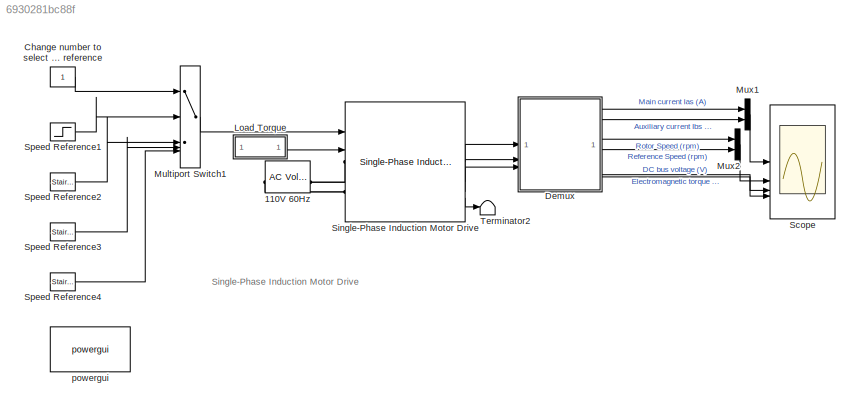
MODEL slx_6930281bc88f
KIND model
CONFIG AbsTol = auto
CONFIG EnableMultiTasking = on
CONFIG FixedStep = auto
CONFIG MaxStep = auto
CONFIG MinStep = auto
CONFIG PreLoadFcn = Ts=2e-6;
CONFIG RelTol = 1e-3
CONFIG SampleTimeConstraint = Unconstrained
CONFIG SolverName = FixedStepDiscrete
CONFIG StartTime = 0.0
CONFIG StopTime = 3
BLOCK [Reference] 110V 60Hz  REF=spsACVoltageSourceLib/AC Voltage Source
  LibrarySourceBlock = sps_lib/Sources/AC Voltage Source
  SourceBlock = spsACVoltageSourceLib/AC Voltage Source
  SourceType = AC Voltage Source
BLOCK [Constant] Change number to select Speed reference
  NameLocation = top
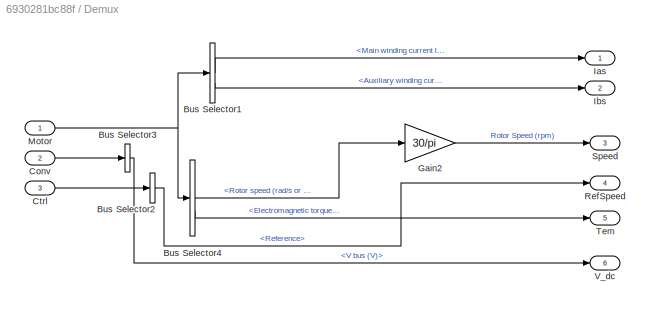
BLOCK [SubSystem] Demux
BLOCK [BusSelector] Demux/Bus Selector1
  OutputSignals = Stator measurements.Main winding current Ia (A or pu),Stator measurements.Auxiliary  winding current Ib (A or pu)
BLOCK [BusSelector] Demux/Bus Selector2
  OutputSignals = Reference
BLOCK [BusSelector] Demux/Bus Selector3
  OutputSignals = V bus (V)
BLOCK [BusSelector] Demux/Bus Selector4
  OutputSignals = Mechanical.Rotor speed (rad/s or pu),Mechanical.Electromagnetic torque Te (N*m or pu)
BLOCK [Inport] Demux/Conv
  Port = 2
BLOCK [Inport] Demux/Ctrl
  Port = 3
BLOCK [Gain] Demux/Gain2
  Gain = 30/pi
  OutDataTypeStr = Inherit: Same as input
  ParamDataTypeStr = Inherit: Same as input
  SaturateOnIntegerOverflow = on
BLOCK [Outport] Demux/Ias
  VectorParamsAs1DForOutWhenUnconnected = off
BLOCK [Outport] Demux/Ibs
  Port = 2
  VectorParamsAs1DForOutWhenUnconnected = off
BLOCK [Inport] Demux/Motor
BLOCK [Outport] Demux/RefSpeed
  Port = 4
  VectorParamsAs1DForOutWhenUnconnected = off
BLOCK [Outport] Demux/Speed
  Port = 3
  VectorParamsAs1DForOutWhenUnconnected = off
BLOCK [Outport] Demux/Tem
  Port = 5
  VectorParamsAs1DForOutWhenUnconnected = off
BLOCK [Outport] Demux/V_dc
  Port = 6
  VectorParamsAs1DForOutWhenUnconnected = off
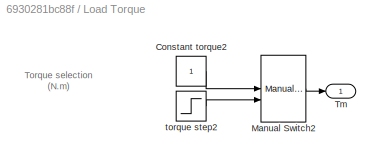
BLOCK [SubSystem] Load Torque
  NameLocation = top
BLOCK [Constant] Load Torque/Constant torque2
  NameLocation = top
BLOCK [ManualSwitch] Load Torque/Manual Switch2
  CurrentSetting = 0
  NameLocation = top
BLOCK [Outport] Load Torque/Tm
  VectorParamsAs1DForOutWhenUnconnected = off
BLOCK [Step] Load Torque/torque step2
  SampleTime = 0
  Time = 2
BLOCK [MultiPortSwitch] Multiport Switch1
  InputSameDT = off
  Inputs = 4
BLOCK [Mux] Mux1
  DisplayOption = bar
  Inputs = 2
BLOCK [Mux] Mux2
  DisplayOption = bar
  Inputs = 2
BLOCK [Scope] Scope
  Floating = off
  NumInputPorts = 4
  ScopeSpecificationString = Simulink.scopes.TimeScopeBlockCfg('CurrentConfiguration', extmgr.ConfigurationSet(extmgr.Configuration('Core','General UI',true,'FigureColor',[0.156862745098039 0.156862745098039 0.156862745098039]),extmgr.Configuration('Core','Source UI',true),extmgr.Configuration('Sources','WiredSimulink',true,'DataLoggingSaveFormat','Array','DataLoggingDecimation','1','DataLoggingDecimateData',true),extmgr.Conf...<+6759ch>
BLOCK [Reference] Single-Phase Induction Motor Drive  REF=electricdrivelib/AC drives/Single-Phase
Induction Motor Drive
  SourceBlock = electricdrivelib/AC drives/Single-Phase\nInduction Motor Drive
  SourceType = Single-Phase Induction Motor Drive
  UserDataPersistent = on
BLOCK [Step] Speed Reference1
  After = 750
  Before = 1500
  NameLocation = top
  SampleTime = 0
BLOCK [Reference] Speed Reference2  REF=spsStairGeneratorLib/Stair
Generator
  LibrarySourceBlock = sps_lib/Sources/Signal Generator Sources/Stair\nGenerator
  NameLocation = top
  SourceBlock = spsStairGeneratorLib/Stair\nGenerator
  SourceType = Stair Generator
BLOCK [Reference] Speed Reference3  REF=spsStairGeneratorLib/Stair
Generator
  LibrarySourceBlock = sps_lib/Sources/Signal Generator Sources/Stair\nGenerator
  NameLocation = top
  SourceBlock = spsStairGeneratorLib/Stair\nGenerator
  SourceType = Stair Generator
BLOCK [Reference] Speed Reference4  REF=spsStairGeneratorLib/Stair
Generator
  LibrarySourceBlock = sps_lib/Sources/Signal Generator Sources/Stair\nGenerator
  NameLocation = top
  SourceBlock = spsStairGeneratorLib/Stair\nGenerator
  SourceType = Stair Generator
BLOCK [Terminator] Terminator2
  NameLocation = top
BLOCK [Reference] powergui  REF=sps_lib/powergui
  LibrarySourceBlock = sps_lib/powergui
  Priority = 2
  SourceBlock = sps_lib/powergui
  SourceType = PSB option menu block
ANNOTATION (root): Single-Phase Induction Motor Drive
ANNOTATION Load Torque: Torque selection (N.m)
LINE Change number to select Speed reference:1 -> Multiport Switch1:1
LINE Demux/Bus Selector1:1 -> Demux/Ias:1
LINE Demux/Bus Selector1:2 -> Demux/Ibs:1
LINE Demux/Bus Selector2:1 -> Demux/RefSpeed:1
LINE Demux/Bus Selector3:1 -> Demux/V_dc:1
LINE Demux/Bus Selector4:1 -> Demux/Gain2:1
LINE Demux/Bus Selector4:2 -> Demux/Tem:1
LINE Demux/Conv:1 -> Demux/Bus Selector3:1
LINE Demux/Ctrl:1 -> Demux/Bus Selector2:1
LINE Demux/Gain2:1 -> Demux/Speed:1
NET Demux/Motor:1 -> Demux/Bus Selector1:1, Demux/Bus Selector4:1
LINE Demux:1 -> Mux1:1
LINE Demux:2 -> Mux1:2
LINE Demux:3 -> Mux2:1
LINE Demux:4 -> Mux2:2
LINE Demux:5 -> Scope:3
LINE Demux:6 -> Scope:4
LINE Load Torque/Constant torque2:1 -> Load Torque/Manual Switch2:1
LINE Load Torque/Manual Switch2:1 -> Load Torque/Tm:1
LINE Load Torque/torque step2:1 -> Load Torque/Manual Switch2:2
LINE Load Torque:1 -> Single-Phase Induction Motor Drive:2
LINE Multiport Switch1:1 -> Single-Phase Induction Motor Drive:1
LINE Mux1:1 -> Scope:1
LINE Mux2:1 -> Scope:2
LINE Single-Phase Induction Motor Drive:1 -> Demux:1
LINE Single-Phase Induction Motor Drive:2 -> Demux:2
LINE Single-Phase Induction Motor Drive:3 -> Demux:3
LINE Single-Phase Induction Motor Drive:4 -> Terminator2:1
LINE Speed Reference1:1 -> Multiport Switch1:2
LINE Speed Reference2:1 -> Multiport Switch1:3
LINE Speed Reference3:1 -> Multiport Switch1:4
LINE Speed Reference4:1 -> Multiport Switch1:5
PLINE 110V 60Hz:LConn1 -- Single-Phase Induction Motor Drive:LConn2
PLINE 110V 60Hz:RConn1 -- Single-Phase Induction Motor Drive:LConn1
note: NET lines group one-source signal fan-out (src -> all destinations, sorted); 1:1 wires keep LINE
